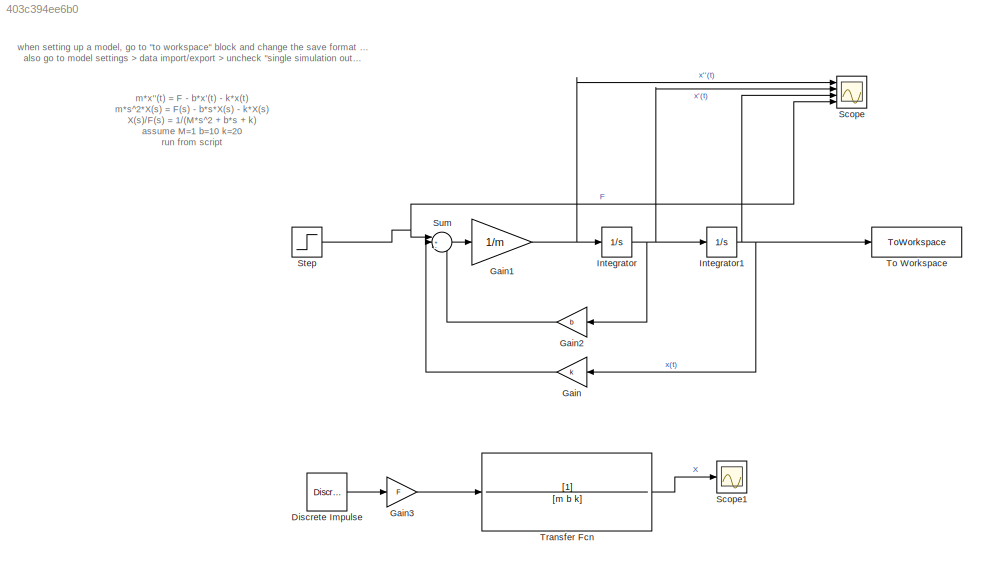
MODEL slx_403c394ee6b0
KIND model
CONFIG AbsTol = auto
CONFIG EnableMultiTasking = off
CONFIG FixedStep = auto
CONFIG MaxStep = 0.001
CONFIG MinStep = auto
CONFIG RelTol = 1e-3
CONFIG SampleTimeConstraint = Unconstrained
CONFIG Solver = VariableStepAuto
CONFIG SolverName = VariableStepAuto
CONFIG StartTime = 0.0
CONFIG StopTime = 10.0
BLOCK [Reference] Discrete Impulse  REF=dspsrcs4/Discrete 
Impulse
  Ports = [0, 1]
  SourceBlock = dspsrcs4/Discrete \nImpulse
  SourceProductBaseCode = DS
  SourceType = Discrete Impulse
BLOCK [Gain] Gain
  Gain = k
BLOCK [Gain] Gain1
  Gain = 1/m
BLOCK [Gain] Gain2
  Gain = b
BLOCK [Gain] Gain3
  Gain = F
BLOCK [Integrator] Integrator
  Ports = [1, 1]
BLOCK [Integrator] Integrator1
  Ports = [1, 1]
BLOCK [Scope] Scope
  Floating = off
  NumInputPorts = 4
  Ports = [4]
  ScopeSpecificationString = Simulink.scopes.TimeScopeBlockCfg('CurrentConfiguration', extmgr.ConfigurationSet(extmgr.Configuration('Core','General UI',true),extmgr.Configuration('Core','Source UI',true),extmgr.Configuration('Sources','WiredSimulink',true),extmgr.Configuration('Visuals','Time Domain',true,'SerializedDisplays',{struct('MinYLimReal','-0.25578','MaxYLimReal','1.13953','YLabelReal','','MinYLimMag','0.00000','MaxY...<+3381ch>
BLOCK [Scope] Scope1
  Floating = off
  NumInputPorts = 1
  Ports = [1]
  ScopeSpecificationString = Simulink.scopes.TimeScopeBlockCfg('CurrentConfiguration', extmgr.ConfigurationSet(extmgr.Configuration('Core','General UI',true),extmgr.Configuration('Core','Source UI',true),extmgr.Configuration('Sources','WiredSimulink',true,'DataLoggingVariableName','ScopeData1'),extmgr.Configuration('Visuals','Time Domain',true,'SerializedDisplays',{struct('MinYLimReal','-0.00625','MaxYLimReal','0.05625','YLab...<+1416ch>
BLOCK [Step] Step
  After = F
  SampleTime = 0
BLOCK [Sum] Sum
  Inputs = |+--
  Ports = [3, 1]
BLOCK [ToWorkspace] To Workspace
  FixptAsFi = on
  MaxDataPoints = inf
  Ports = [1]
  SampleTime = -1
  VariableName = output
BLOCK [TransferFcn] Transfer Fcn
  Denominator = [m b k]
ANNOTATION (root): m*x''(t) = F - b*x'(t) - k*x(t) m*s^2*X(s) = F(s) - b*s*X(s) - k*X(s) X(s)/F(s) = 1/(M*s^2 + b*s + k) assume M=1 b=10 k=20 run from script
ANNOTATION (root): when setting up a model, go to "to workspace" block and change the save format to "array" also go to model settings > data import/export > uncheck "single simulation output"
LINE Discrete Impulse:1 -> Gain3:1
NET Gain1:1 -> Integrator:1, Scope:1
LINE Gain2:1 -> Sum:3
LINE Gain3:1 -> Transfer Fcn:1
LINE Gain:1 -> Sum:2
NET Integrator1:1 -> Gain:1, Scope:3, To Workspace:1
NET Integrator:1 -> Gain2:1, Integrator1:1, Scope:2
NET Step:1 -> Scope:4, Sum:1
LINE Sum:1 -> Gain1:1
LINE Transfer Fcn:1 -> Scope1:1
note: NET lines group one-source signal fan-out (src -> all destinations, sorted); 1:1 wires keep LINE
